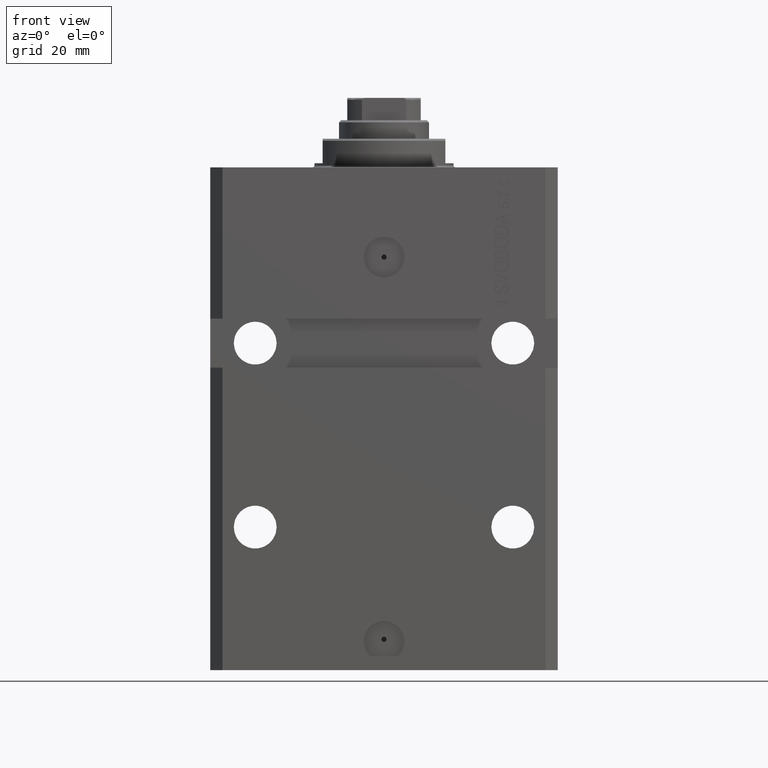
[diagram: clean part render]
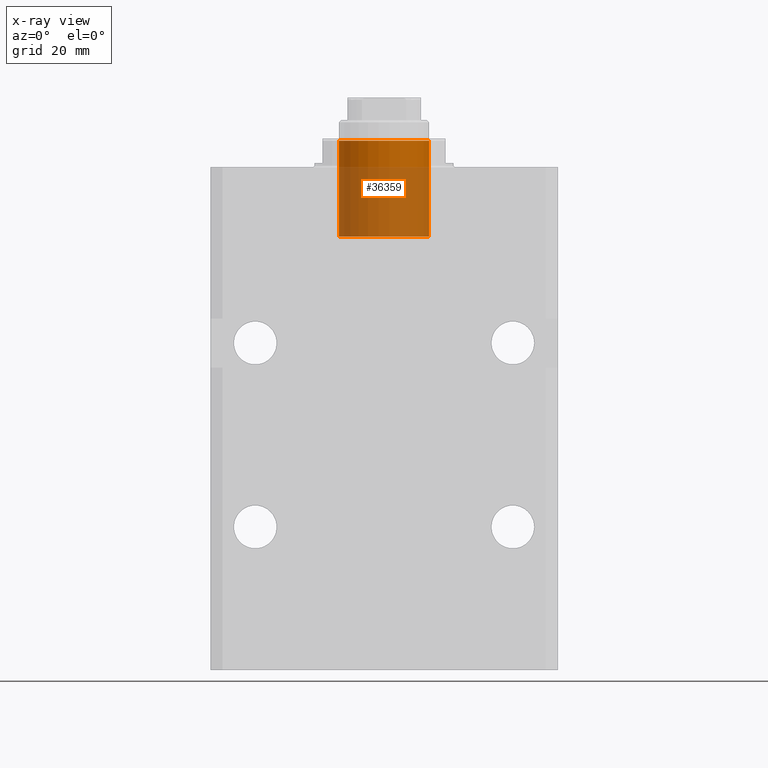
[diagram: x-ray — body ghosted, one internal face saturated and labeled with its STEP entity id]
A machine part, front view, then the same camera in x-ray: the body is ghosted and one INTERNAL B-rep face — a face not visible from any outside direction — is saturated and labeled: STEP entity #36359.
In plain terms, the highlighted cylindrical surface (partial cylindrical patch) has radius 11 mm, axis along (0, -0, 1).
Its self-contained STEP definition (entity closure, byte-faithful):
#3248 = AXIS2_PLACEMENT_3D ( 'NONE', #47757, #10388, #14325 ) ;
#4284 = EDGE_CURVE ( 'NONE', #44651, #31924, #29537, .T. ) ;
#6227 = ORIENTED_EDGE ( 'NONE', *, *, #16055, .F. ) ;
#7071 = DIRECTION ( 'NONE',  ( -1.000000000000000000, 0.000000000000000000, 0.000000000000000000 ) ) ;
#7079 = EDGE_CURVE ( 'NONE', #44651, #34044, #46408, .T. ) ;
#7331 = EDGE_LOOP ( 'NONE', ( #19943, #15947, #12818, #6227 ) ) ;
#7766 = EDGE_CURVE ( 'NONE', #31924, #23990, #23702, .T. ) ;
#8608 = DIRECTION ( 'NONE',  ( -0.000000000000000000, -0.000000000000000000, -1.000000000000000000 ) ) ;
#8750 = AXIS2_PLACEMENT_3D ( 'NONE', #18153, #48134, #7071 ) ;
#8753 = VECTOR ( 'NONE', #21928, 1000.000000000000000 ) ;
#8856 = CARTESIAN_POINT ( 'NONE',  ( -11.00000000000000000, 0.000000000000000000, 17.00000000000000000 ) ) ;
#9250 = CARTESIAN_POINT ( 'NONE',  ( -11.00000000000000000, 0.000000000000000000, 17.00000000000000000 ) ) ;
#10388 = DIRECTION ( 'NONE',  ( -0.000000000000000000, -0.000000000000000000, -1.000000000000000000 ) ) ;
#12313 = LINE ( 'NONE', #8856, #30256 ) ;
#12818 = ORIENTED_EDGE ( 'NONE', *, *, #7766, .T. ) ;
#14044 = CARTESIAN_POINT ( 'NONE',  ( -11.00000000000000000, 0.000000000000000000, -6.499999999999992006 ) ) ;
#14325 = DIRECTION ( 'NONE',  ( -1.000000000000000000, 0.000000000000000000, 0.000000000000000000 ) ) ;
#15582 = DIRECTION ( 'NONE',  ( -1.000000000000000000, 0.000000000000000000, 0.000000000000000000 ) ) ;
#15947 = ORIENTED_EDGE ( 'NONE', *, *, #4284, .T. ) ;
#16055 = EDGE_CURVE ( 'NONE', #34044, #23990, #12313, .T. ) ;
#18153 = CARTESIAN_POINT ( 'NONE',  ( 0.000000000000000000, 0.000000000000000000, -6.499999999999992006 ) ) ;
#19755 = CARTESIAN_POINT ( 'NONE',  ( 0.000000000000000000, 0.000000000000000000, 17.00000000000000000 ) ) ;
#19943 = ORIENTED_EDGE ( 'NONE', *, *, #7079, .F. ) ;
#21928 = DIRECTION ( 'NONE',  ( -0.000000000000000000, -0.000000000000000000, -1.000000000000000000 ) ) ;
#23702 = CIRCLE ( 'NONE', #8750, 11.00000000000000000 ) ;
#23990 = VERTEX_POINT ( 'NONE', #14044 ) ;
#24076 = CARTESIAN_POINT ( 'NONE',  ( 11.00000000000000000, 1.347111479062088405E-15, -6.499999999999992006 ) ) ;
#29537 = LINE ( 'NONE', #36191, #8753 ) ;
#30256 = VECTOR ( 'NONE', #8608, 1000.000000000000000 ) ;
#31924 = VERTEX_POINT ( 'NONE', #24076 ) ;
#32784 = FACE_OUTER_BOUND ( 'NONE', #7331, .T. ) ;
#33019 = CYLINDRICAL_SURFACE ( 'NONE', #3248, 11.00000000000000000 ) ;
#34044 = VERTEX_POINT ( 'NONE', #9250 ) ;
#36191 = CARTESIAN_POINT ( 'NONE',  ( 11.00000000000000000, 1.347111479062088405E-15, 17.00000000000000000 ) ) ;
#36359 = ADVANCED_FACE ( 'NONE', ( #32784 ), #33019, .F. ) ;
#37479 = DIRECTION ( 'NONE',  ( 0.000000000000000000, 0.000000000000000000, -1.000000000000000000 ) ) ;
#41033 = AXIS2_PLACEMENT_3D ( 'NONE', #19755, #37479, #15582 ) ;
#44651 = VERTEX_POINT ( 'NONE', #48476 ) ;
#46408 = CIRCLE ( 'NONE', #41033, 11.00000000000000000 ) ;
#47757 = CARTESIAN_POINT ( 'NONE',  ( 0.000000000000000000, 0.000000000000000000, 17.00000000000000000 ) ) ;
#48134 = DIRECTION ( 'NONE',  ( 0.000000000000000000, 0.000000000000000000, -1.000000000000000000 ) ) ;
#48476 = CARTESIAN_POINT ( 'NONE',  ( 11.00000000000000000, 1.347111479062088405E-15, 17.00000000000000000 ) ) ;